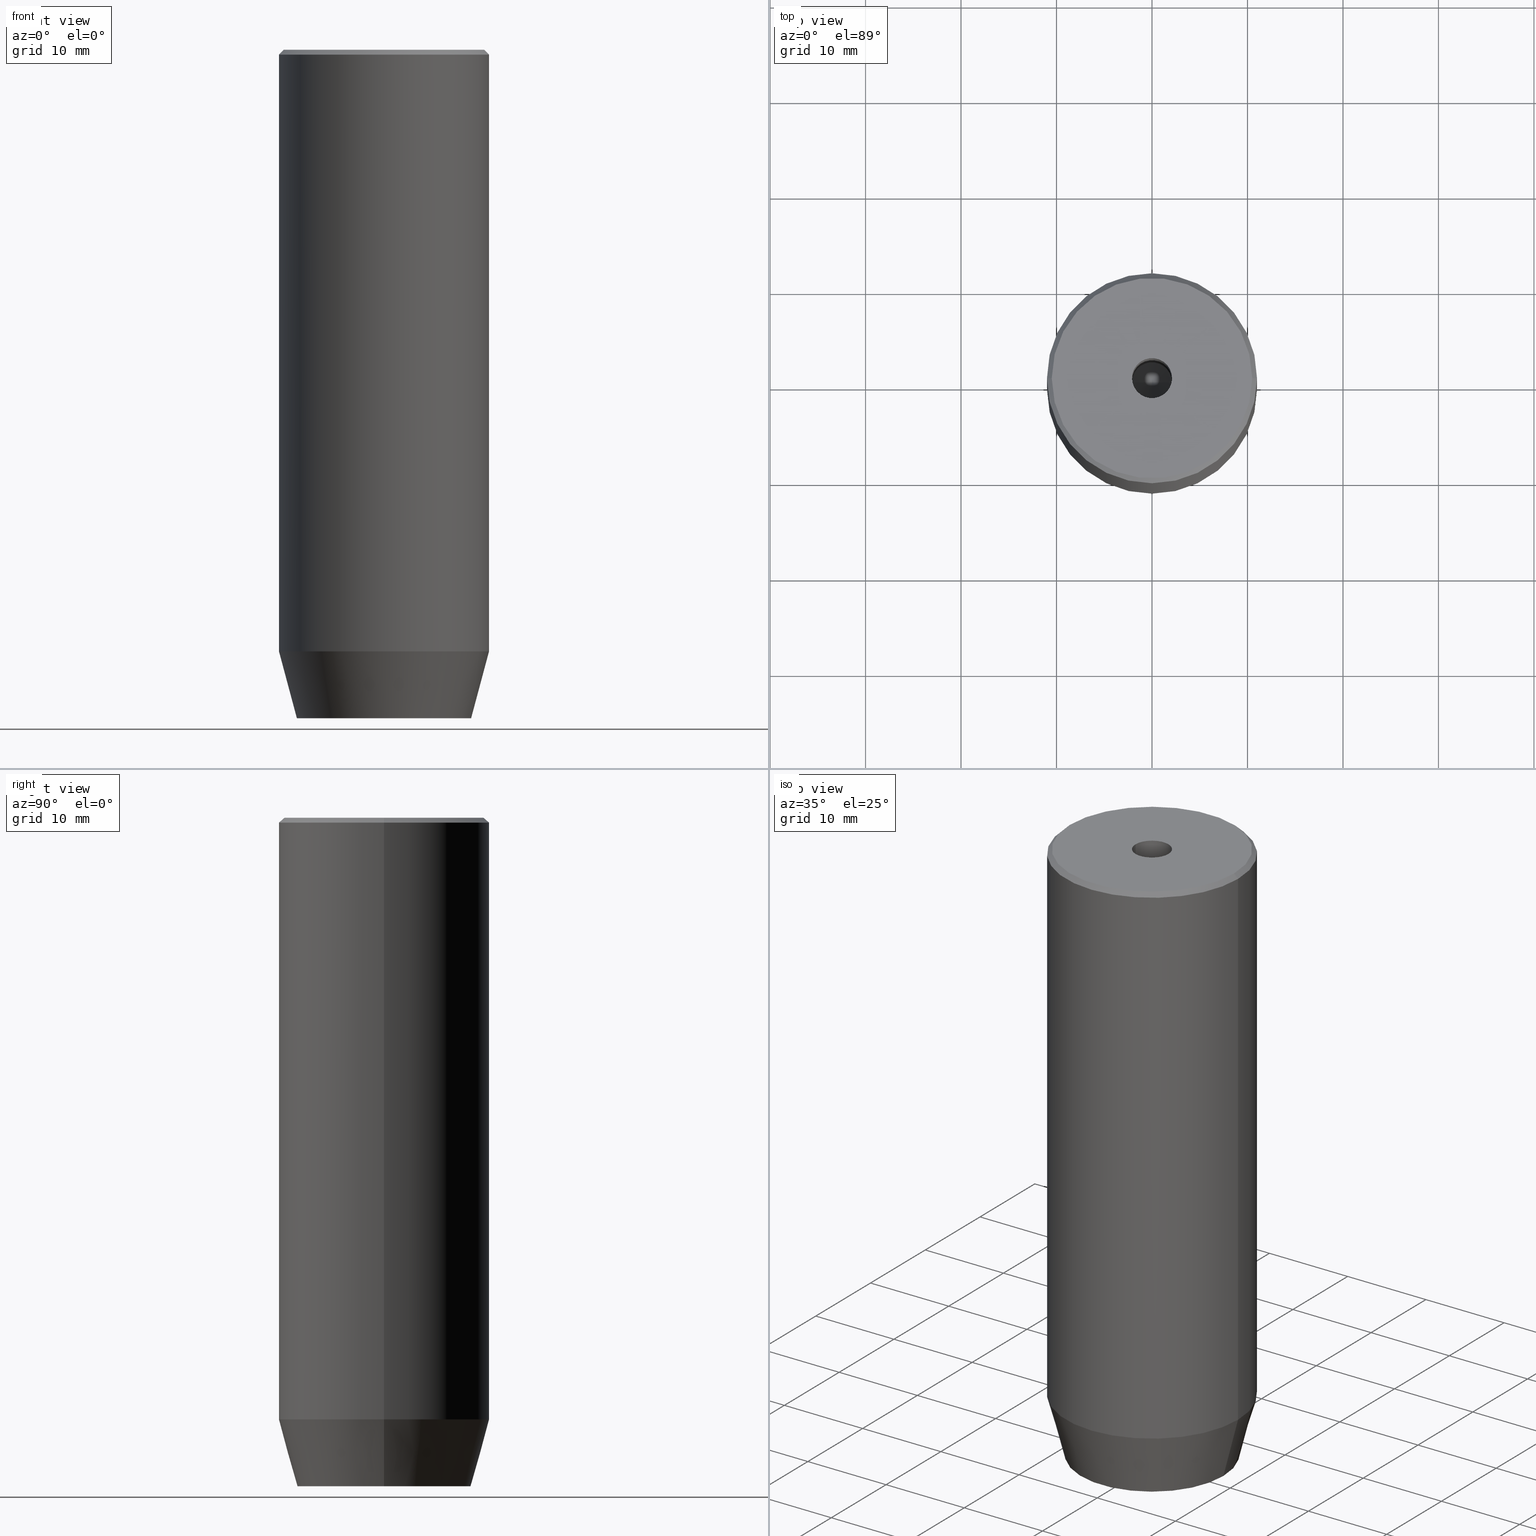
[diagram: canonical four-view strip — front | top / right | iso, engineering-drawing reading convention]
A machine part, canonical four-view strip (front | top / right | iso — engineering-drawing reading convention). The complete STEP part file that produces these views, byte-faithful:
ISO-10303-21;
HEADER;
FILE_DESCRIPTION (( 'STEP AP203' ),
    '1' );
FILE_NAME ('9c77.STEP',
    '2024-01-02T19:02:39',
    ( '' ),
    ( '' ),
    'SwSTEP 2.0',
    'SolidWorks 2019',
    '' );
FILE_SCHEMA (( 'CONFIG_CONTROL_DESIGN' ));
ENDSEC;

DATA;
#1 = DIRECTION ( 'NONE',  ( 1.000000000000000000, 0.000000000000000000, 0.000000000000000000 ) ) ;
#2 = EDGE_LOOP ( 'NONE', ( #317, #234, #158, #478, #150, #527 ) ) ;
#3 = APPROVAL_PERSON_ORGANIZATION ( #22, #94, #433 ) ;
#4 = DIRECTION ( 'NONE',  ( -0.000000000000000000, -0.000000000000000000, -1.000000000000000000 ) ) ;
#5 = APPLICATION_CONTEXT ( 'configuration controlled 3d designs of mechanical parts and assemblies' ) ;
#6 = ADVANCED_FACE ( 'NONE', ( #440 ), #187, .F. ) ;
#7 = LINE ( 'NONE', #193, #198 ) ;
#8 = CARTESIAN_POINT ( 'NONE',  ( 4.336808689942017736E-16, -4.618802153517006737, -67.20000000000000284 ) ) ;
#9 = LINE ( 'NONE', #536, #107 ) ;
#10 = DATE_TIME_ROLE ( 'creation_date' ) ;
#11 = DIRECTION ( 'NONE',  ( -1.000000000000000000, 0.000000000000000000, 0.000000000000000000 ) ) ;
#12 = APPROVAL_PERSON_ORGANIZATION ( #428, #497, #421 ) ;
#13 = CARTESIAN_POINT ( 'NONE',  ( -2.099999999999996980, 2.571758278209438013E-16, 0.000000000000000000 ) ) ;
#14 = ORIENTED_EDGE ( 'NONE', *, *, #151, .F. ) ;
#15 = CARTESIAN_POINT ( 'NONE',  ( 0.000000000000000000, 0.000000000000000000, -25.00000000000000000 ) ) ;
#16 = COORDINATED_UNIVERSAL_TIME_OFFSET ( 1, 0, .AHEAD. ) ;
#17 = CARTESIAN_POINT ( 'NONE',  ( -4.000000000000000000, 0.000000000000000000, -70.00000000000000000 ) ) ;
#18 = VERTEX_POINT ( 'NONE', #210 ) ;
#19 = PRODUCT_DEFINITION ( 'NEZN�M�', '', #220, #295 ) ;
#20 =( LENGTH_UNIT ( ) NAMED_UNIT ( * ) SI_UNIT ( .MILLI., .METRE. ) );
#21 = DIRECTION ( 'NONE',  ( 1.000000000000000000, 0.000000000000000000, 0.000000000000000000 ) ) ;
#22 = PERSON_AND_ORGANIZATION ( #76, #265 ) ;
#23 = ORIENTED_EDGE ( 'NONE', *, *, #142, .F. ) ;
#24 = ADVANCED_FACE ( 'NONE', ( #128 ), #306, .F. ) ;
#25 = ORIENTED_EDGE ( 'NONE', *, *, #526, .T. ) ;
#26 = VECTOR ( 'NONE', #328, 1000.000000000000000 ) ;
#27 = CIRCLE ( 'NONE', #224, 11.00000000000000000 ) ;
#28 = ORIENTED_EDGE ( 'NONE', *, *, #214, .T. ) ;
#29 = APPROVAL_DATE_TIME ( #530, #345 ) ;
#30 = DIRECTION ( 'NONE',  ( -0.000000000000000000, -0.000000000000000000, 1.000000000000000000 ) ) ;
#31 = LOCAL_TIME ( 20, 2, 39.00000000000000000, #122 ) ;
#32 = ORIENTED_EDGE ( 'NONE', *, *, #518, .F. ) ;
#33 = ADVANCED_FACE ( 'NONE', ( #168 ), #103, .T. ) ;
#34 = CC_DESIGN_DATE_AND_TIME_ASSIGNMENT ( #488, #348, ( #40 ) ) ;
#35 = ORIENTED_EDGE ( 'NONE', *, *, #292, .T. ) ;
#36 = LINE ( 'NONE', #359, #374 ) ;
#37 = VECTOR ( 'NONE', #47, 999.9999999999998863 ) ;
#38 = DIRECTION ( 'NONE',  ( 1.000000000000000000, 0.000000000000000000, 0.000000000000000000 ) ) ;
#39 = VECTOR ( 'NONE', #4, 1000.000000000000000 ) ;
#40 = SECURITY_CLASSIFICATION ( '', '', #211 ) ;
#41 = LINE ( 'NONE', #264, #534 ) ;
#42 = ADVANCED_FACE ( 'NONE', ( #408 ), #154, .T. ) ;
#43 = CARTESIAN_POINT ( 'NONE',  ( -2.000000000000000000, 3.464101615137754830, -70.00000000000000000 ) ) ;
#44 = DIRECTION ( 'NONE',  ( 1.000000000000000000, 0.000000000000000000, 0.000000000000000000 ) ) ;
#45 = DIRECTION ( 'NONE',  ( -0.000000000000000000, -0.000000000000000000, 1.000000000000000000 ) ) ;
#46 = AXIS2_PLACEMENT_3D ( 'NONE', #423, #338, #185 ) ;
#47 = DIRECTION ( 'NONE',  ( 0.8660254037844387076, 0.5000000000000001110, 0.000000000000000000 ) ) ;
#48 = DIRECTION ( 'NONE',  ( -0.7071067811865451302, 0.000000000000000000, -0.7071067811865500152 ) ) ;
#49 = LINE ( 'NONE', #413, #39 ) ;
#50 = EDGE_CURVE ( 'NONE', #531, #248, #27, .T. ) ;
#51 = DIRECTION ( 'NONE',  ( 1.000000000000000000, 0.000000000000000000, 0.000000000000000000 ) ) ;
#52 = DIRECTION ( 'NONE',  ( -1.000000000000000000, 0.000000000000000000, 0.000000000000000000 ) ) ;
#53 = EDGE_LOOP ( 'NONE', ( #164, #202, #267, #315 ) ) ;
#54 = DIRECTION ( 'NONE',  ( 0.8660254037844384856, 0.5000000000000002220, 0.000000000000000000 ) ) ;
#55 = ORIENTED_EDGE ( 'NONE', *, *, #246, .F. ) ;
#56 = ORIENTED_EDGE ( 'NONE', *, *, #50, .F. ) ;
#57 = PLANE ( 'NONE',  #337 ) ;
#58 = AXIS2_PLACEMENT_3D ( 'NONE', #398, #171, #580 ) ;
#59 = ORIENTED_EDGE ( 'NONE', *, *, #159, .F. ) ;
#60 = CARTESIAN_POINT ( 'NONE',  ( -2.099999999999995648, 2.571758278209436040E-16, -25.00000000000000000 ) ) ;
#61 = ADVANCED_FACE ( 'NONE', ( #87 ), #270, .T. ) ;
#62 = PERSON_AND_ORGANIZATION ( #76, #265 ) ;
#63 = CARTESIAN_POINT ( 'NONE',  ( 0.000000000000000000, 0.000000000000000000, -25.00000000000000000 ) ) ;
#64 = VERTEX_POINT ( 'NONE', #535 ) ;
#65 = EDGE_LOOP ( 'NONE', ( #55, #502, #420, #256 ) ) ;
#66 = VERTEX_POINT ( 'NONE', #405 ) ;
#67 = ORIENTED_EDGE ( 'NONE', *, *, #334, .F. ) ;
#68 = EDGE_CURVE ( 'NONE', #173, #346, #141, .T. ) ;
#69 = AXIS2_PLACEMENT_3D ( 'NONE', #15, #189, #329 ) ;
#70 = EDGE_LOOP ( 'NONE', ( #507, #100, #203, #184 ) ) ;
#71 = AXIS2_PLACEMENT_3D ( 'NONE', #137, #587, #51 ) ;
#72 = ORIENTED_EDGE ( 'NONE', *, *, #312, .F. ) ;
#73 = VERTEX_POINT ( 'NONE', #181 ) ;
#74 = CONICAL_SURFACE ( 'NONE', #46, 11.00000000000000000, 0.2617993877991500740 ) ;
#75 = ORIENTED_EDGE ( 'NONE', *, *, #259, .F. ) ;
#76 = PERSON ( 'NEUR�EN�', 'NEUR�EN�', 'NEUR�EN�', ('NEUR�EN�'), ('NEUR�EN�'), ('NEUR�EN�') ) ;
#77 = AXIS2_PLACEMENT_3D ( 'NONE', #140, #269, #177 ) ;
#78 = VECTOR ( 'NONE', #92, 1000.000000000000000 ) ;
#79 = ADVANCED_FACE ( 'NONE', ( #82 ), #263, .F. ) ;
#80 = APPROVAL_STATUS ( 'not_yet_approved' ) ;
#81 = ORIENTED_EDGE ( 'NONE', *, *, #542, .F. ) ;
#82 = FACE_OUTER_BOUND ( 'NONE', #382, .T. ) ;
#83 = EDGE_CURVE ( 'NONE', #18, #438, #172, .T. ) ;
#84 = CIRCLE ( 'NONE', #156, 9.124355652982133691 ) ;
#85 = DIRECTION ( 'NONE',  ( 1.000000000000000000, 0.000000000000000000, 0.000000000000000000 ) ) ;
#86 = EDGE_LOOP ( 'NONE', ( #465, #424 ) ) ;
#87 = FACE_OUTER_BOUND ( 'NONE', #458, .T. ) ;
#88 = CARTESIAN_POINT ( 'NONE',  ( 11.00000000000000000, 0.000000000000000000, 0.000000000000000000 ) ) ;
#89 = CARTESIAN_POINT ( 'NONE',  ( 0.000000000000000000, 0.000000000000000000, -63.00000000000000000 ) ) ;
#90 = FACE_BOUND ( 'NONE', #477, .T. ) ;
#91 = ORIENTED_EDGE ( 'NONE', *, *, #259, .T. ) ;
#92 = DIRECTION ( 'NONE',  ( 0.000000000000000000, -1.000000000000000000, 0.000000000000000000 ) ) ;
#93 = CARTESIAN_POINT ( 'NONE',  ( 0.000000000000000000, 0.000000000000000000, 0.000000000000000000 ) ) ;
#94 = APPROVAL ( #80, 'NEUR�EN�' ) ;
#95 = CC_DESIGN_PERSON_AND_ORGANIZATION_ASSIGNMENT ( #344, #575, ( #220 ) ) ;
#96 = LINE ( 'NONE', #289, #26 ) ;
#97 = FACE_OUTER_BOUND ( 'NONE', #326, .T. ) ;
#98 = ORIENTED_EDGE ( 'NONE', *, *, #483, .T. ) ;
#99 = FACE_OUTER_BOUND ( 'NONE', #322, .T. ) ;
#100 = ORIENTED_EDGE ( 'NONE', *, *, #341, .T. ) ;
#101 = LINE ( 'NONE', #476, #437 ) ;
#102 = ORIENTED_EDGE ( 'NONE', *, *, #246, .T. ) ;
#103 = CONICAL_SURFACE ( 'NONE', #331, 10.49999999999998224, 0.7853981633974447263 ) ;
#104 = COORDINATED_UNIVERSAL_TIME_OFFSET ( 1, 0, .AHEAD. ) ;
#105 = EDGE_CURVE ( 'NONE', #212, #205, #96, .T. ) ;
#106 = LINE ( 'NONE', #13, #454 ) ;
#107 = VECTOR ( 'NONE', #233, 1000.000000000000114 ) ;
#108 =( NAMED_UNIT ( * ) SI_UNIT ( $, .STERADIAN. ) SOLID_ANGLE_UNIT ( ) );
#109 = CC_DESIGN_APPROVAL ( #94, ( #40 ) ) ;
#110 = DIRECTION ( 'NONE',  ( 0.000000000000000000, 1.000000000000000000, 0.000000000000000000 ) ) ;
#111 = DIRECTION ( 'NONE',  ( 0.000000000000000000, -1.000000000000000000, 0.000000000000000000 ) ) ;
#112 = PERSON_AND_ORGANIZATION ( #76, #265 ) ;
#113 = DIRECTION ( 'NONE',  ( -0.8571673007021108903, 1.049727191138616847E-16, 0.5150380749100565980 ) ) ;
#114 = ORIENTED_EDGE ( 'NONE', *, *, #506, .T. ) ;
#115 = CARTESIAN_POINT ( 'NONE',  ( 4.000000000000000000, 0.000000000000000000, -67.20000000000000284 ) ) ;
#116 = EDGE_CURVE ( 'NONE', #73, #545, #101, .T. ) ;
#117 = COORDINATED_UNIVERSAL_TIME_OFFSET ( 1, 0, .AHEAD. ) ;
#118 = CLOSED_SHELL ( 'NONE', ( #446, #393, #33, #42, #61, #279, #563, #236, #133, #268, #586, #302, #79, #349, #254, #466, #201, #6, #24 ) ) ;
#119 = ORIENTED_EDGE ( 'NONE', *, *, #116, .T. ) ;
#120 = ORIENTED_EDGE ( 'NONE', *, *, #68, .F. ) ;
#121 = CARTESIAN_POINT ( 'NONE',  ( 0.000000000000000000, 4.618802153517006737, -67.20000000000000284 ) ) ;
#122 = COORDINATED_UNIVERSAL_TIME_OFFSET ( 1, 0, .AHEAD. ) ;
#123 = VECTOR ( 'NONE', #378, 1000.000000000000000 ) ;
#124 = LOCAL_TIME ( 20, 2, 39.00000000000000000, #301 ) ;
#125 = CARTESIAN_POINT ( 'NONE',  ( -4.000000000000000000, 2.309401076758503368, -67.20000000000000284 ) ) ;
#126 = ORIENTED_EDGE ( 'NONE', *, *, #190, .T. ) ;
#127 = CC_DESIGN_PERSON_AND_ORGANIZATION_ASSIGNMENT ( #62, #285, ( #431 ) ) ;
#128 = FACE_OUTER_BOUND ( 'NONE', #136, .T. ) ;
#129 = LINE ( 'NONE', #392, #216 ) ;
#130 = CARTESIAN_POINT ( 'NONE',  ( 0.000000000000000000, 0.000000000000000000, -25.00000000000000000 ) ) ;
#131 = DIRECTION ( 'NONE',  ( -0.000000000000000000, -0.000000000000000000, 1.000000000000000000 ) ) ;
#132 = FACE_OUTER_BOUND ( 'NONE', #2, .T. ) ;
#133 = ADVANCED_FACE ( 'NONE', ( #283 ), #74, .T. ) ;
#134 = DIRECTION ( 'NONE',  ( -0.000000000000000000, -0.000000000000000000, 1.000000000000000000 ) ) ;
#135 = CARTESIAN_POINT ( 'NONE',  ( 0.000000000000000000, 0.000000000000000000, 0.000000000000000000 ) ) ;
#136 = EDGE_LOOP ( 'NONE', ( #23, #547, #119, #25 ) ) ;
#137 = CARTESIAN_POINT ( 'NONE',  ( 0.000000000000000000, 0.000000000000000000, -1.990051048614449116E-16 ) ) ;
#138 = CARTESIAN_POINT ( 'NONE',  ( 4.000000000000000000, -2.309401076758502480, -67.20000000000000284 ) ) ;
#139 = VECTOR ( 'NONE', #501, 1000.000000000000000 ) ;
#140 = CARTESIAN_POINT ( 'NONE',  ( 0.000000000000000000, 0.000000000000000000, -0.5000000000000213163 ) ) ;
#141 = LINE ( 'NONE', #538, #499 ) ;
#142 = EDGE_CURVE ( 'NONE', #438, #255, #106, .T. ) ;
#143 = CARTESIAN_POINT ( 'NONE',  ( -4.000000000000000000, 0.000000000000000000, -67.20000000000000284 ) ) ;
#144 = VERTEX_POINT ( 'NONE', #515 ) ;
#145 = DIRECTION ( 'NONE',  ( 1.000000000000000000, 0.000000000000000000, 0.000000000000000000 ) ) ;
#146 = FACE_BOUND ( 'NONE', #299, .T. ) ;
#147 = DIRECTION ( 'NONE',  ( 0.000000000000000000, 0.000000000000000000, 1.000000000000000000 ) ) ;
#148 = ORIENTED_EDGE ( 'NONE', *, *, #180, .F. ) ;
#149 = DIRECTION ( 'NONE',  ( -0.000000000000000000, -0.000000000000000000, -1.000000000000000000 ) ) ;
#150 = ORIENTED_EDGE ( 'NONE', *, *, #489, .T. ) ;
#151 = EDGE_CURVE ( 'NONE', #304, #64, #7, .T. ) ;
#152 = CARTESIAN_POINT ( 'NONE',  ( -2.099999999999995648, 2.571758278209436040E-16, -25.00000000000000000 ) ) ;
#153 = VERTEX_POINT ( 'NONE', #370 ) ;
#154 = CONICAL_SURFACE ( 'NONE', #305, 11.00000000000000000, 0.2617993877991500740 ) ;
#155 = FACE_OUTER_BOUND ( 'NONE', #452, .T. ) ;
#156 = AXIS2_PLACEMENT_3D ( 'NONE', #574, #449, #38 ) ;
#157 = LINE ( 'NONE', #558, #178 ) ;
#158 = ORIENTED_EDGE ( 'NONE', *, *, #429, .T. ) ;
#159 = EDGE_CURVE ( 'NONE', #205, #469, #555, .T. ) ;
#160 = APPROVAL_STATUS ( 'not_yet_approved' ) ;
#161 = LINE ( 'NONE', #121, #217 ) ;
#162 = SHAPE_DEFINITION_REPRESENTATION ( #287, #327 ) ;
#163 = EDGE_LOOP ( 'NONE', ( #377, #388, #482, #444 ) ) ;
#164 = ORIENTED_EDGE ( 'NONE', *, *, #190, .F. ) ;
#165 = EDGE_CURVE ( 'NONE', #255, #545, #167, .T. ) ;
#166 = DIRECTION ( 'NONE',  ( -0.8660254037844384856, 0.5000000000000002220, 0.000000000000000000 ) ) ;
#167 = CIRCLE ( 'NONE', #577, 2.099999999999998757 ) ;
#168 = FACE_OUTER_BOUND ( 'NONE', #387, .T. ) ;
#169 = DIRECTION ( 'NONE',  ( -0.000000000000000000, -0.000000000000000000, 1.000000000000000000 ) ) ;
#170 = EDGE_CURVE ( 'NONE', #73, #438, #318, .T. ) ;
#171 = DIRECTION ( 'NONE',  ( 0.000000000000000000, 0.000000000000000000, -1.000000000000000000 ) ) ;
#172 = LINE ( 'NONE', #152, #569 ) ;
#173 = VERTEX_POINT ( 'NONE', #495 ) ;
#174 = DIRECTION ( 'NONE',  ( 0.5000000000000001110, 0.8660254037844385966, -0.000000000000000000 ) ) ;
#175 = DIRECTION ( 'NONE',  ( -0.000000000000000000, 0.000000000000000000, -1.000000000000000000 ) ) ;
#176 = CONICAL_SURFACE ( 'NONE', #486, 10.49999999999998224, 0.7853981633974447263 ) ;
#177 = DIRECTION ( 'NONE',  ( 1.000000000000000000, 0.000000000000000000, 0.000000000000000000 ) ) ;
#178 = VECTOR ( 'NONE', #149, 1000.000000000000000 ) ;
#179 = DIRECTION ( 'NONE',  ( -0.000000000000000000, -0.000000000000000000, 1.000000000000000000 ) ) ;
#180 = EDGE_CURVE ( 'NONE', #244, #173, #475, .T. ) ;
#181 = CARTESIAN_POINT ( 'NONE',  ( 2.099999999999995648, 0.000000000000000000, -25.00000000000000000 ) ) ;
#182 = CARTESIAN_POINT ( 'NONE',  ( 4.336808689942017736E-16, -4.618802153517006737, -67.20000000000000284 ) ) ;
#183 = FACE_OUTER_BOUND ( 'NONE', #65, .T. ) ;
#184 = ORIENTED_EDGE ( 'NONE', *, *, #321, .T. ) ;
#185 = DIRECTION ( 'NONE',  ( 1.000000000000000000, 0.000000000000000000, 0.000000000000000000 ) ) ;
#186 = CARTESIAN_POINT ( 'NONE',  ( 0.000000000000000000, 0.000000000000000000, -70.00000000000000000 ) ) ;
#187 = CONICAL_SURFACE ( 'NONE', #309, 2.099999999999995648, 1.029744258676651647 ) ;
#188 = CARTESIAN_POINT ( 'NONE',  ( 0.000000000000000000, 0.000000000000000000, 0.000000000000000000 ) ) ;
#189 = DIRECTION ( 'NONE',  ( -0.000000000000000000, -0.000000000000000000, 1.000000000000000000 ) ) ;
#190 = EDGE_CURVE ( 'NONE', #484, #248, #258, .T. ) ;
#191 = PLANE ( 'NONE',  #513 ) ;
#192 = ORIENTED_EDGE ( 'NONE', *, *, #426, .F. ) ;
#193 = CARTESIAN_POINT ( 'NONE',  ( 2.000000000000000444, 3.464101615137754386, -70.00000000000000000 ) ) ;
#194 = CALENDAR_DATE ( 2024, 2, 1 ) ;
#195 = ORIENTED_EDGE ( 'NONE', *, *, #415, .F. ) ;
#196 = DIRECTION ( 'NONE',  ( -0.000000000000000000, -0.000000000000000000, 1.000000000000000000 ) ) ;
#197 = VERTEX_POINT ( 'NONE', #125 ) ;
#198 = VECTOR ( 'NONE', #376, 1000.000000000000000 ) ;
#199 = CALENDAR_DATE ( 2024, 2, 1 ) ;
#200 = EDGE_LOOP ( 'NONE', ( #28, #126, #56, #537 ) ) ;
#201 = ADVANCED_FACE ( 'NONE', ( #132 ), #207, .T. ) ;
#202 = ORIENTED_EDGE ( 'NONE', *, *, #307, .T. ) ;
#203 = ORIENTED_EDGE ( 'NONE', *, *, #334, .T. ) ;
#204 = CALENDAR_DATE ( 2024, 2, 1 ) ;
#205 = VERTEX_POINT ( 'NONE', #389 ) ;
#206 = EDGE_CURVE ( 'NONE', #197, #407, #129, .T. ) ;
#207 = PLANE ( 'NONE',  #58 ) ;
#208 = AXIS2_PLACEMENT_3D ( 'NONE', #366, #585, #505 ) ;
#209 = VECTOR ( 'NONE', #549, 1000.000000000000000 ) ;
#210 = CARTESIAN_POINT ( 'NONE',  ( -6.432287649943602629E-15, 0.000000000000000000, -26.26180729995787999 ) ) ;
#211 = SECURITY_CLASSIFICATION_LEVEL ( 'unclassified' ) ;
#212 = VERTEX_POINT ( 'NONE', #221 ) ;
#213 = FACE_OUTER_BOUND ( 'NONE', #70, .T. ) ;
#214 = EDGE_CURVE ( 'NONE', #66, #484, #84, .T. ) ;
#215 = ORIENTED_EDGE ( 'NONE', *, *, #483, .F. ) ;
#216 = VECTOR ( 'NONE', #353, 999.9999999999998863 ) ;
#217 = VECTOR ( 'NONE', #300, 1000.000000000000000 ) ;
#218 = CARTESIAN_POINT ( 'NONE',  ( -2.000000000000000888, -3.464101615137754386, -67.20000000000000284 ) ) ;
#219 = CARTESIAN_POINT ( 'NONE',  ( 11.00000000000000000, 0.000000000000000000, -63.00000000000000000 ) ) ;
#220 = PRODUCT_DEFINITION_FORMATION_WITH_SPECIFIED_SOURCE ( 'LIBOVOLN�', '', #431, .NOT_KNOWN. ) ;
#221 = CARTESIAN_POINT ( 'NONE',  ( -4.000000000000000000, -2.309401076758503368, -67.20000000000000284 ) ) ;
#222 = LINE ( 'NONE', #450, #443 ) ;
#223 = LINE ( 'NONE', #43, #37 ) ;
#224 = AXIS2_PLACEMENT_3D ( 'NONE', #89, #131, #417 ) ;
#225 = PLANE ( 'NONE',  #227 ) ;
#226 = EDGE_CURVE ( 'NONE', #153, #205, #490, .T. ) ;
#227 = AXIS2_PLACEMENT_3D ( 'NONE', #368, #237, #550 ) ;
#228 = CARTESIAN_POINT ( 'NONE',  ( 4.000000000000000000, -2.309401076758502480, -67.20000000000000284 ) ) ;
#229 = VECTOR ( 'NONE', #451, 1000.000000000000000 ) ;
#230 = DIRECTION ( 'NONE',  ( 0.8660254037844385966, -0.5000000000000001110, 0.000000000000000000 ) ) ;
#231 = ORIENTED_EDGE ( 'NONE', *, *, #226, .T. ) ;
#232 = LINE ( 'NONE', #455, #553 ) ;
#233 = DIRECTION ( 'NONE',  ( 0.7071067811865451302, 8.659560562354904508E-17, -0.7071067811865500152 ) ) ;
#234 = ORIENTED_EDGE ( 'NONE', *, *, #312, .T. ) ;
#235 = CARTESIAN_POINT ( 'NONE',  ( 0.000000000000000000, 0.000000000000000000, 0.000000000000000000 ) ) ;
#236 = ADVANCED_FACE ( 'NONE', ( #213 ), #396, .T. ) ;
#237 = DIRECTION ( 'NONE',  ( 0.000000000000000000, 0.000000000000000000, -1.000000000000000000 ) ) ;
#238 = DIRECTION ( 'NONE',  ( -0.8660254037844385966, -0.4999999999999999445, 0.000000000000000000 ) ) ;
#239 =( NAMED_UNIT ( * ) PLANE_ANGLE_UNIT ( ) SI_UNIT ( $, .RADIAN. ) );
#240 = ORIENTED_EDGE ( 'NONE', *, *, #142, .T. ) ;
#241 = LINE ( 'NONE', #479, #123 ) ;
#242 = APPLICATION_PROTOCOL_DEFINITION ( 'international standard', 'config_control_design', 1994, #383 ) ;
#243 = DIRECTION ( 'NONE',  ( -0.000000000000000000, -0.000000000000000000, 1.000000000000000000 ) ) ;
#244 = VERTEX_POINT ( 'NONE', #533 ) ;
#245 = FACE_OUTER_BOUND ( 'NONE', #347, .T. ) ;
#246 = EDGE_CURVE ( 'NONE', #244, #144, #9, .T. ) ;
#247 = DIRECTION ( 'NONE',  ( -0.000000000000000000, -0.000000000000000000, 1.000000000000000000 ) ) ;
#248 = VERTEX_POINT ( 'NONE', #314 ) ;
#249 = CIRCLE ( 'NONE', #208, 11.00000000000000000 ) ;
#250 = CALENDAR_DATE ( 2024, 2, 1 ) ;
#251 = VECTOR ( 'NONE', #418, 1000.000000000000000 ) ;
#252 = ORIENTED_EDGE ( 'NONE', *, *, #551, .F. ) ;
#253 = FACE_OUTER_BOUND ( 'NONE', #414, .T. ) ;
#254 = ADVANCED_FACE ( 'NONE', ( #462 ), #371, .F. ) ;
#255 = VERTEX_POINT ( 'NONE', #311 ) ;
#256 = ORIENTED_EDGE ( 'NONE', *, *, #321, .F. ) ;
#257 = CC_DESIGN_APPROVAL ( #345, ( #220 ) ) ;
#258 = LINE ( 'NONE', #261, #343 ) ;
#259 = EDGE_CURVE ( 'NONE', #469, #304, #223, .T. ) ;
#260 = ORIENTED_EDGE ( 'NONE', *, *, #518, .T. ) ;
#261 = CARTESIAN_POINT ( 'NONE',  ( -11.00000000000000000, 1.347111479062088405E-15, -63.00000000000000000 ) ) ;
#262 = PRODUCT_RELATED_PRODUCT_CATEGORY ( 'detail', '', ( #431 ) ) ;
#263 = PLANE ( 'NONE',  #355 ) ;
#264 = CARTESIAN_POINT ( 'NONE',  ( -2.000000000000000888, -3.464101615137754386, -67.20000000000000284 ) ) ;
#265 = ORGANIZATION ( 'NEUR�EN�', 'NEUR�EN�', '' ) ;
#266 = LINE ( 'NONE', #456, #229 ) ;
#267 = ORIENTED_EDGE ( 'NONE', *, *, #441, .T. ) ;
#268 = ADVANCED_FACE ( 'NONE', ( #183 ), #176, .T. ) ;
#269 = DIRECTION ( 'NONE',  ( 0.000000000000000000, 0.000000000000000000, -1.000000000000000000 ) ) ;
#270 = CYLINDRICAL_SURFACE ( 'NONE', #282, 11.00000000000000000 ) ;
#271 = DIRECTION ( 'NONE',  ( -0.8660254037844384856, -0.5000000000000002220, 0.000000000000000000 ) ) ;
#272 = DIRECTION ( 'NONE',  ( -0.000000000000000000, -0.000000000000000000, 1.000000000000000000 ) ) ;
#273 = ORIENTED_EDGE ( 'NONE', *, *, #532, .F. ) ;
#274 = ORIENTED_EDGE ( 'NONE', *, *, #50, .T. ) ;
#275 = DIRECTION ( 'NONE',  ( -0.000000000000000000, -0.000000000000000000, 1.000000000000000000 ) ) ;
#276 = CIRCLE ( 'NONE', #564, 10.49999999999998224 ) ;
#277 = DIRECTION ( 'NONE',  ( 0.000000000000000000, 0.000000000000000000, -1.000000000000000000 ) ) ;
#278 = AXIS2_PLACEMENT_3D ( 'NONE', #427, #510, #145 ) ;
#279 = ADVANCED_FACE ( 'NONE', ( #90, #419 ), #225, .T. ) ;
#280 = DIRECTION ( 'NONE',  ( 0.5000000000000003331, -0.8660254037844385966, 0.000000000000000000 ) ) ;
#281 = DIRECTION ( 'NONE',  ( 1.000000000000000000, 0.000000000000000000, 0.000000000000000000 ) ) ;
#282 = AXIS2_PLACEMENT_3D ( 'NONE', #491, #45, #352 ) ;
#283 = FACE_OUTER_BOUND ( 'NONE', #53, .T. ) ;
#284 = CARTESIAN_POINT ( 'NONE',  ( 2.000000000000000888, -3.464101615137754386, -67.20000000000000284 ) ) ;
#285 = PERSON_AND_ORGANIZATION_ROLE ( 'design_owner' ) ;
#286 = CARTESIAN_POINT ( 'NONE',  ( 0.000000000000000000, 0.000000000000000000, -1.990051048614449116E-16 ) ) ;
#287 = PRODUCT_DEFINITION_SHAPE ( 'NONE', 'NONE',  #19 ) ;
#288 = LOCAL_TIME ( 20, 2, 39.00000000000000000, #16 ) ;
#289 = CARTESIAN_POINT ( 'NONE',  ( -4.000000000000000000, -2.309401076758503368, -67.20000000000000284 ) ) ;
#290 = ORIENTED_EDGE ( 'NONE', *, *, #526, .F. ) ;
#291 = CYLINDRICAL_SURFACE ( 'NONE', #543, 2.099999999999996980 ) ;
#292 = EDGE_CURVE ( 'NONE', #438, #73, #562, .T. ) ;
#293 = ORIENTED_EDGE ( 'NONE', *, *, #292, .F. ) ;
#294 = DATE_AND_TIME ( #194, #288 ) ;
#295 = DESIGN_CONTEXT ( 'detailed design', #5, 'design' ) ;
#296 = ORIENTED_EDGE ( 'NONE', *, *, #415, .T. ) ;
#297 = PERSON_AND_ORGANIZATION_ROLE ( 'classification_officer' ) ;
#298 = EDGE_LOOP ( 'NONE', ( #98, #81, #565, #367 ) ) ;
#299 = EDGE_LOOP ( 'NONE', ( #290, #434 ) ) ;
#300 = DIRECTION ( 'NONE',  ( -0.000000000000000000, -0.000000000000000000, -1.000000000000000000 ) ) ;
#301 = COORDINATED_UNIVERSAL_TIME_OFFSET ( 1, 0, .AHEAD. ) ;
#302 = ADVANCED_FACE ( 'NONE', ( #406 ), #494, .F. ) ;
#303 = APPROVAL_PERSON_ORGANIZATION ( #442, #345, #570 ) ;
#304 = VERTEX_POINT ( 'NONE', #410 ) ;
#305 = AXIS2_PLACEMENT_3D ( 'NONE', #308, #134, #496 ) ;
#306 = CYLINDRICAL_SURFACE ( 'NONE', #358, 2.099999999999996980 ) ;
#307 = EDGE_CURVE ( 'NONE', #484, #66, #430, .T. ) ;
#308 = CARTESIAN_POINT ( 'NONE',  ( 0.000000000000000000, 0.000000000000000000, -63.00000000000000000 ) ) ;
#309 = AXIS2_PLACEMENT_3D ( 'NONE', #130, #30, #529 ) ;
#310 = CARTESIAN_POINT ( 'NONE',  ( -9.124355652982133691, 1.232261386766375507E-15, -70.00000000000000000 ) ) ;
#311 = CARTESIAN_POINT ( 'NONE',  ( -2.099999999999998757, 2.571758278209440478E-16, -1.990051048614449116E-16 ) ) ;
#312 = EDGE_CURVE ( 'NONE', #407, #335, #360, .T. ) ;
#313 = CARTESIAN_POINT ( 'NONE',  ( 2.099999999999998757, 0.000000000000000000, -1.990051048614449116E-16 ) ) ;
#314 = CARTESIAN_POINT ( 'NONE',  ( -11.00000000000000000, 1.347111479062088405E-15, -63.00000000000000000 ) ) ;
#315 = ORIENTED_EDGE ( 'NONE', *, *, #341, .F. ) ;
#316 = PLANE ( 'NONE',  #487 ) ;
#317 = ORIENTED_EDGE ( 'NONE', *, *, #206, .T. ) ;
#318 = CIRCLE ( 'NONE', #395, 2.099999999999995648 ) ;
#319 = DIRECTION ( 'NONE',  ( -0.8660254037844385966, 0.5000000000000001110, 0.000000000000000000 ) ) ;
#320 = DIRECTION ( 'NONE',  ( -0.000000000000000000, -0.000000000000000000, 1.000000000000000000 ) ) ;
#321 = EDGE_CURVE ( 'NONE', #144, #346, #503, .T. ) ;
#322 = EDGE_LOOP ( 'NONE', ( #339, #500 ) ) ;
#323 = DIRECTION ( 'NONE',  ( 1.000000000000000000, 0.000000000000000000, 0.000000000000000000 ) ) ;
#324 = CONICAL_SURFACE ( 'NONE', #69, 2.099999999999995648, 1.029744258676651647 ) ;
#325 = LINE ( 'NONE', #88, #139 ) ;
#326 = EDGE_LOOP ( 'NONE', ( #260, #252, #560, #579 ) ) ;
#327 = ADVANCED_BREP_SHAPE_REPRESENTATION ( '9c77', ( #512, #582 ), #504 ) ;
#328 = DIRECTION ( 'NONE',  ( -0.000000000000000000, -0.000000000000000000, -1.000000000000000000 ) ) ;
#329 = DIRECTION ( 'NONE',  ( 1.000000000000000000, 0.000000000000000000, 0.000000000000000000 ) ) ;
#330 = ORIENTED_EDGE ( 'NONE', *, *, #105, .F. ) ;
#331 = AXIS2_PLACEMENT_3D ( 'NONE', #447, #363, #460 ) ;
#332 = PLANE ( 'NONE',  #278 ) ;
#333 = EDGE_LOOP ( 'NONE', ( #411, #571, #524 ) ) ;
#334 = EDGE_CURVE ( 'NONE', #531, #144, #325, .T. ) ;
#335 = VERTEX_POINT ( 'NONE', #540 ) ;
#336 = AXIS2_PLACEMENT_3D ( 'NONE', #186, #320, #1 ) ;
#337 = AXIS2_PLACEMENT_3D ( 'NONE', #409, #174, #319 ) ;
#338 = DIRECTION ( 'NONE',  ( -0.000000000000000000, -0.000000000000000000, 1.000000000000000000 ) ) ;
#339 = ORIENTED_EDGE ( 'NONE', *, *, #356, .T. ) ;
#340 = PERSON_AND_ORGANIZATION_ROLE ( 'design_supplier' ) ;
#341 = EDGE_CURVE ( 'NONE', #248, #531, #249, .T. ) ;
#342 = ORIENTED_EDGE ( 'NONE', *, *, #572, .T. ) ;
#343 = VECTOR ( 'NONE', #439, 1000.000000000000000 ) ;
#344 = PERSON_AND_ORGANIZATION ( #76, #265 ) ;
#345 = APPROVAL ( #160, 'NEUR�EN�' ) ;
#346 = VERTEX_POINT ( 'NONE', #544 ) ;
#347 = EDGE_LOOP ( 'NONE', ( #435, #473, #72, #556 ) ) ;
#348 = DATE_TIME_ROLE ( 'classification_date' ) ;
#349 = ADVANCED_FACE ( 'NONE', ( #97 ), #316, .F. ) ;
#350 = ORIENTED_EDGE ( 'NONE', *, *, #116, .F. ) ;
#351 = AXIS2_PLACEMENT_3D ( 'NONE', #143, #11, #147 ) ;
#352 = DIRECTION ( 'NONE',  ( 1.000000000000000000, 0.000000000000000000, 0.000000000000000000 ) ) ;
#353 = DIRECTION ( 'NONE',  ( 0.8660254037844387076, 0.5000000000000001110, 0.000000000000000000 ) ) ;
#354 = DIRECTION ( 'NONE',  ( -0.000000000000000000, -0.000000000000000000, 1.000000000000000000 ) ) ;
#355 = AXIS2_PLACEMENT_3D ( 'NONE', #218, #401, #583 ) ;
#356 = EDGE_CURVE ( 'NONE', #173, #244, #276, .T. ) ;
#357 = ORIENTED_EDGE ( 'NONE', *, *, #226, .F. ) ;
#358 = AXIS2_PLACEMENT_3D ( 'NONE', #485, #394, #578 ) ;
#359 = CARTESIAN_POINT ( 'NONE',  ( 2.000000000000000888, -3.464101615137754386, -70.00000000000000000 ) ) ;
#360 = LINE ( 'NONE', #422, #391 ) ;
#361 = ORIENTED_EDGE ( 'NONE', *, *, #206, .F. ) ;
#362 = AXIS2_PLACEMENT_3D ( 'NONE', #404, #169, #584 ) ;
#363 = DIRECTION ( 'NONE',  ( 0.000000000000000000, 0.000000000000000000, -1.000000000000000000 ) ) ;
#364 = DIRECTION ( 'NONE',  ( 0.8571673007021108903, 0.000000000000000000, 0.5150380749100565980 ) ) ;
#365 = LOCAL_TIME ( 20, 2, 39.00000000000000000, #117 ) ;
#366 = CARTESIAN_POINT ( 'NONE',  ( 0.000000000000000000, 0.000000000000000000, -63.00000000000000000 ) ) ;
#367 = ORIENTED_EDGE ( 'NONE', *, *, #386, .T. ) ;
#368 = CARTESIAN_POINT ( 'NONE',  ( 0.000000000000000000, 9.124355652982133691, -70.00000000000000000 ) ) ;
#369 = VERTEX_POINT ( 'NONE', #138 ) ;
#370 = CARTESIAN_POINT ( 'NONE',  ( 4.336808689942017736E-16, -4.618802153517006737, -70.00000000000000000 ) ) ;
#371 = PLANE ( 'NONE',  #552 ) ;
#372 = VECTOR ( 'NONE', #111, 1000.000000000000000 ) ;
#373 = DIRECTION ( 'NONE',  ( -0.000000000000000000, -0.000000000000000000, 1.000000000000000000 ) ) ;
#374 = VECTOR ( 'NONE', #271, 1000.000000000000114 ) ;
#375 = ORIENTED_EDGE ( 'NONE', *, *, #489, .F. ) ;
#376 = DIRECTION ( 'NONE',  ( 0.8660254037844385966, -0.5000000000000001110, 0.000000000000000000 ) ) ;
#377 = ORIENTED_EDGE ( 'NONE', *, *, #159, .T. ) ;
#378 = DIRECTION ( 'NONE',  ( 0.2588190451025213501, 0.000000000000000000, 0.9659258262890680902 ) ) ;
#379 = EDGE_CURVE ( 'NONE', #212, #197, #266, .T. ) ;
#380 = CARTESIAN_POINT ( 'NONE',  ( 0.000000000000000000, 0.000000000000000000, -0.5000000000000213163 ) ) ;
#381 = DATE_AND_TIME ( #199, #511 ) ;
#382 = EDGE_LOOP ( 'NONE', ( #231, #330, #375, #541 ) ) ;
#383 = APPLICATION_CONTEXT ( 'configuration controlled 3d designs of mechanical parts and assemblies' ) ;
#384 = AXIS2_PLACEMENT_3D ( 'NONE', #235, #179, #281 ) ;
#385 = CC_DESIGN_SECURITY_CLASSIFICATION ( #40, ( #220 ) ) ;
#386 = EDGE_CURVE ( 'NONE', #335, #64, #49, .T. ) ;
#387 = EDGE_LOOP ( 'NONE', ( #148, #102, #195, #120 ) ) ;
#388 = ORIENTED_EDGE ( 'NONE', *, *, #572, .F. ) ;
#389 = CARTESIAN_POINT ( 'NONE',  ( -4.000000000000000000, -2.309401076758503368, -70.00000000000000000 ) ) ;
#390 = VECTOR ( 'NONE', #166, 1000.000000000000114 ) ;
#391 = VECTOR ( 'NONE', #230, 1000.000000000000000 ) ;
#392 = CARTESIAN_POINT ( 'NONE',  ( -2.000000000000000000, 3.464101615137754830, -67.20000000000000284 ) ) ;
#393 = ADVANCED_FACE ( 'NONE', ( #566 ), #324, .F. ) ;
#394 = DIRECTION ( 'NONE',  ( -0.000000000000000000, -0.000000000000000000, 1.000000000000000000 ) ) ;
#395 = AXIS2_PLACEMENT_3D ( 'NONE', #63, #243, #44 ) ;
#396 = CYLINDRICAL_SURFACE ( 'NONE', #362, 11.00000000000000000 ) ;
#397 = EDGE_LOOP ( 'NONE', ( #273, #521, #35 ) ) ;
#398 = CARTESIAN_POINT ( 'NONE',  ( 0.000000000000000000, 0.000000000000000000, -67.20000000000000284 ) ) ;
#399 = AXIS2_PLACEMENT_3D ( 'NONE', #380, #425, #21 ) ;
#400 = CIRCLE ( 'NONE', #71, 2.099999999999998757 ) ;
#401 = DIRECTION ( 'NONE',  ( -0.5000000000000003331, -0.8660254037844385966, 0.000000000000000000 ) ) ;
#402 = LINE ( 'NONE', #228, #251 ) ;
#403 = EDGE_CURVE ( 'NONE', #369, #516, #517, .T. ) ;
#404 = CARTESIAN_POINT ( 'NONE',  ( 0.000000000000000000, 0.000000000000000000, 0.000000000000000000 ) ) ;
#405 = CARTESIAN_POINT ( 'NONE',  ( 9.124355652982133691, 0.000000000000000000, -70.00000000000000000 ) ) ;
#406 = FACE_OUTER_BOUND ( 'NONE', #163, .T. ) ;
#407 = VERTEX_POINT ( 'NONE', #522 ) ;
#408 = FACE_OUTER_BOUND ( 'NONE', #200, .T. ) ;
#409 = CARTESIAN_POINT ( 'NONE',  ( 2.000000000000000444, 3.464101615137754386, -67.20000000000000284 ) ) ;
#410 = CARTESIAN_POINT ( 'NONE',  ( 2.168404344971008868E-16, 4.618802153517006737, -70.00000000000000000 ) ) ;
#411 = ORIENTED_EDGE ( 'NONE', *, *, #83, .F. ) ;
#412 = LINE ( 'NONE', #8, #209 ) ;
#413 = CARTESIAN_POINT ( 'NONE',  ( 4.000000000000000000, 2.309401076758503368, -67.20000000000000284 ) ) ;
#414 = EDGE_LOOP ( 'NONE', ( #293, #240, #509, #350 ) ) ;
#415 = EDGE_CURVE ( 'NONE', #346, #144, #581, .T. ) ;
#416 = CC_DESIGN_PERSON_AND_ORGANIZATION_ASSIGNMENT ( #576, #297, ( #40 ) ) ;
#417 = DIRECTION ( 'NONE',  ( 1.000000000000000000, 0.000000000000000000, 0.000000000000000000 ) ) ;
#418 = DIRECTION ( 'NONE',  ( -0.000000000000000000, -0.000000000000000000, -1.000000000000000000 ) ) ;
#419 = FACE_OUTER_BOUND ( 'NONE', #86, .T. ) ;
#420 = ORIENTED_EDGE ( 'NONE', *, *, #68, .T. ) ;
#421 = APPROVAL_ROLE ( '' ) ;
#422 = CARTESIAN_POINT ( 'NONE',  ( 2.000000000000000444, 3.464101615137754386, -67.20000000000000284 ) ) ;
#423 = CARTESIAN_POINT ( 'NONE',  ( 0.000000000000000000, 0.000000000000000000, -63.00000000000000000 ) ) ;
#424 = ORIENTED_EDGE ( 'NONE', *, *, #307, .F. ) ;
#425 = DIRECTION ( 'NONE',  ( 0.000000000000000000, 0.000000000000000000, -1.000000000000000000 ) ) ;
#426 = EDGE_CURVE ( 'NONE', #407, #304, #161, .T. ) ;
#427 = CARTESIAN_POINT ( 'NONE',  ( 0.000000000000000000, 0.000000000000000000, 0.000000000000000000 ) ) ;
#428 = PERSON_AND_ORGANIZATION ( #76, #265 ) ;
#429 = EDGE_CURVE ( 'NONE', #335, #369, #467, .T. ) ;
#430 = CIRCLE ( 'NONE', #336, 9.124355652982133691 ) ;
#431 = PRODUCT ( '9c77', '9c77', '', ( #554 ) ) ;
#432 = CC_DESIGN_APPROVAL ( #497, ( #19 ) ) ;
#433 = APPROVAL_ROLE ( '' ) ;
#434 = ORIENTED_EDGE ( 'NONE', *, *, #165, .F. ) ;
#435 = ORIENTED_EDGE ( 'NONE', *, *, #151, .T. ) ;
#436 = CARTESIAN_POINT ( 'NONE',  ( 0.000000000000000000, 0.000000000000000000, 0.000000000000000000 ) ) ;
#437 = VECTOR ( 'NONE', #559, 1000.000000000000000 ) ;
#438 = VERTEX_POINT ( 'NONE', #60 ) ;
#439 = DIRECTION ( 'NONE',  ( -0.2588190451025213501, 3.169619151431772337E-17, 0.9659258262890680902 ) ) ;
#440 = FACE_OUTER_BOUND ( 'NONE', #333, .T. ) ;
#441 = EDGE_CURVE ( 'NONE', #66, #531, #241, .T. ) ;
#442 = PERSON_AND_ORGANIZATION ( #76, #265 ) ;
#443 = VECTOR ( 'NONE', #275, 1000.000000000000000 ) ;
#444 = ORIENTED_EDGE ( 'NONE', *, *, #105, .T. ) ;
#445 = CARTESIAN_POINT ( 'NONE',  ( -2.000000000000000888, -3.464101615137754386, -70.00000000000000000 ) ) ;
#446 = ADVANCED_FACE ( 'NONE', ( #253 ), #291, .F. ) ;
#447 = CARTESIAN_POINT ( 'NONE',  ( 0.000000000000000000, 0.000000000000000000, 0.000000000000000000 ) ) ;
#448 = CARTESIAN_POINT ( 'NONE',  ( -4.000000000000000000, 2.309401076758503368, -70.00000000000000000 ) ) ;
#449 = DIRECTION ( 'NONE',  ( -0.000000000000000000, -0.000000000000000000, 1.000000000000000000 ) ) ;
#450 = CARTESIAN_POINT ( 'NONE',  ( -11.00000000000000000, 1.347111479062088405E-15, 0.000000000000000000 ) ) ;
#451 = DIRECTION ( 'NONE',  ( 0.000000000000000000, 1.000000000000000000, 0.000000000000000000 ) ) ;
#452 = EDGE_LOOP ( 'NONE', ( #91, #192, #361, #342 ) ) ;
#453 = CARTESIAN_POINT ( 'NONE',  ( 4.000000000000000000, 0.000000000000000000, -67.20000000000000284 ) ) ;
#454 = VECTOR ( 'NONE', #247, 1000.000000000000000 ) ;
#455 = CARTESIAN_POINT ( 'NONE',  ( 2.099999999999995648, 0.000000000000000000, -25.00000000000000000 ) ) ;
#456 = CARTESIAN_POINT ( 'NONE',  ( -4.000000000000000000, 0.000000000000000000, -67.20000000000000284 ) ) ;
#457 = CC_DESIGN_PERSON_AND_ORGANIZATION_ASSIGNMENT ( #112, #468, ( #19 ) ) ;
#458 = EDGE_LOOP ( 'NONE', ( #274, #114, #296, #67 ) ) ;
#459 = AXIS2_PLACEMENT_3D ( 'NONE', #546, #354, #492 ) ;
#460 = DIRECTION ( 'NONE',  ( -1.000000000000000000, 0.000000000000000000, 0.000000000000000000 ) ) ;
#461 = LINE ( 'NONE', #493, #78 ) ;
#462 = FACE_OUTER_BOUND ( 'NONE', #298, .T. ) ;
#463 = DIRECTION ( 'NONE',  ( -0.5000000000000000000, 0.8660254037844387076, 0.000000000000000000 ) ) ;
#464 = DIRECTION ( 'NONE',  ( 1.000000000000000000, 0.000000000000000000, -0.000000000000000000 ) ) ;
#465 = ORIENTED_EDGE ( 'NONE', *, *, #214, .F. ) ;
#466 = ADVANCED_FACE ( 'NONE', ( #245 ), #57, .F. ) ;
#467 = LINE ( 'NONE', #115, #372 ) ;
#468 = PERSON_AND_ORGANIZATION_ROLE ( 'creator' ) ;
#469 = VERTEX_POINT ( 'NONE', #448 ) ;
#470 = CC_DESIGN_DATE_AND_TIME_ASSIGNMENT ( #294, #10, ( #19 ) ) ;
#471 = CARTESIAN_POINT ( 'NONE',  ( -2.000000000000000000, 3.464101615137754830, -67.20000000000000284 ) ) ;
#472 = DIRECTION ( 'NONE',  ( 1.000000000000000000, 0.000000000000000000, 0.000000000000000000 ) ) ;
#473 = ORIENTED_EDGE ( 'NONE', *, *, #386, .F. ) ;
#474 = CARTESIAN_POINT ( 'NONE',  ( 4.000000000000000000, -2.309401076758502480, -70.00000000000000000 ) ) ;
#475 = CIRCLE ( 'NONE', #384, 10.49999999999998224 ) ;
#476 = CARTESIAN_POINT ( 'NONE',  ( 2.099999999999996980, 0.000000000000000000, 0.000000000000000000 ) ) ;
#477 = EDGE_LOOP ( 'NONE', ( #75, #59, #357, #32, #215, #14 ) ) ;
#478 = ORIENTED_EDGE ( 'NONE', *, *, #403, .T. ) ;
#479 = CARTESIAN_POINT ( 'NONE',  ( 11.00000000000000000, 0.000000000000000000, -63.00000000000000000 ) ) ;
#480 = VECTOR ( 'NONE', #568, 1000.000000000000114 ) ;
#481 = DATE_AND_TIME ( #525, #365 ) ;
#482 = ORIENTED_EDGE ( 'NONE', *, *, #379, .F. ) ;
#483 = EDGE_CURVE ( 'NONE', #64, #573, #461, .T. ) ;
#484 = VERTEX_POINT ( 'NONE', #310 ) ;
#485 = CARTESIAN_POINT ( 'NONE',  ( 0.000000000000000000, 0.000000000000000000, 0.000000000000000000 ) ) ;
#486 = AXIS2_PLACEMENT_3D ( 'NONE', #93, #277, #52 ) ;
#487 = AXIS2_PLACEMENT_3D ( 'NONE', #498, #280, #54 ) ;
#488 = DATE_AND_TIME ( #204, #31 ) ;
#489 = EDGE_CURVE ( 'NONE', #516, #212, #41, .T. ) ;
#490 = LINE ( 'NONE', #445, #390 ) ;
#491 = CARTESIAN_POINT ( 'NONE',  ( 0.000000000000000000, 0.000000000000000000, 0.000000000000000000 ) ) ;
#492 = DIRECTION ( 'NONE',  ( 1.000000000000000000, 0.000000000000000000, 0.000000000000000000 ) ) ;
#493 = CARTESIAN_POINT ( 'NONE',  ( 4.000000000000000000, 0.000000000000000000, -70.00000000000000000 ) ) ;
#494 = PLANE ( 'NONE',  #351 ) ;
#495 = CARTESIAN_POINT ( 'NONE',  ( -10.49999999999998224, 0.000000000000000000, 0.000000000000000000 ) ) ;
#496 = DIRECTION ( 'NONE',  ( 1.000000000000000000, 0.000000000000000000, 0.000000000000000000 ) ) ;
#497 = APPROVAL ( #508, 'NEUR�EN�' ) ;
#498 = CARTESIAN_POINT ( 'NONE',  ( 2.000000000000000888, -3.464101615137754386, -67.20000000000000284 ) ) ;
#499 = VECTOR ( 'NONE', #48, 1000.000000000000114 ) ;
#500 = ORIENTED_EDGE ( 'NONE', *, *, #180, .T. ) ;
#501 = DIRECTION ( 'NONE',  ( -0.000000000000000000, -0.000000000000000000, 1.000000000000000000 ) ) ;
#502 = ORIENTED_EDGE ( 'NONE', *, *, #356, .F. ) ;
#503 = CIRCLE ( 'NONE', #77, 11.00000000000000000 ) ;
#504 =( GEOMETRIC_REPRESENTATION_CONTEXT ( 3 ) GLOBAL_UNCERTAINTY_ASSIGNED_CONTEXT ( ( #519 ) ) GLOBAL_UNIT_ASSIGNED_CONTEXT ( ( #20, #239, #108 ) ) REPRESENTATION_CONTEXT ( 'NONE', 'WORKASPACE' ) );
#505 = DIRECTION ( 'NONE',  ( 1.000000000000000000, 0.000000000000000000, 0.000000000000000000 ) ) ;
#506 = EDGE_CURVE ( 'NONE', #248, #346, #222, .T. ) ;
#507 = ORIENTED_EDGE ( 'NONE', *, *, #506, .F. ) ;
#508 = APPROVAL_STATUS ( 'not_yet_approved' ) ;
#509 = ORIENTED_EDGE ( 'NONE', *, *, #165, .T. ) ;
#510 = DIRECTION ( 'NONE',  ( 0.000000000000000000, -0.000000000000000000, 1.000000000000000000 ) ) ;
#511 = LOCAL_TIME ( 20, 2, 39.00000000000000000, #104 ) ;
#512 = MANIFOLD_SOLID_BREP ( 'Vrt�k z�vitn�ku pro M5 z�vit1', #118 ) ;
#513 = AXIS2_PLACEMENT_3D ( 'NONE', #471, #463, #238 ) ;
#514 = APPLICATION_PROTOCOL_DEFINITION ( 'international standard', 'config_control_design', 1994, #5 ) ;
#515 = CARTESIAN_POINT ( 'NONE',  ( 11.00000000000000000, 0.000000000000000000, -0.5000000000000213163 ) ) ;
#516 = VERTEX_POINT ( 'NONE', #182 ) ;
#517 = LINE ( 'NONE', #284, #480 ) ;
#518 = EDGE_CURVE ( 'NONE', #573, #153, #36, .T. ) ;
#519 = UNCERTAINTY_MEASURE_WITH_UNIT (LENGTH_MEASURE( 1.000000000000000082E-05 ), #20, 'distance_accuracy_value', 'NONE');
#520 = CC_DESIGN_PERSON_AND_ORGANIZATION_ASSIGNMENT ( #523, #340, ( #220 ) ) ;
#521 = ORIENTED_EDGE ( 'NONE', *, *, #83, .T. ) ;
#522 = CARTESIAN_POINT ( 'NONE',  ( 0.000000000000000000, 4.618802153517006737, -67.20000000000000284 ) ) ;
#523 = PERSON_AND_ORGANIZATION ( #76, #265 ) ;
#524 = ORIENTED_EDGE ( 'NONE', *, *, #170, .T. ) ;
#525 = CALENDAR_DATE ( 2024, 2, 1 ) ;
#526 = EDGE_CURVE ( 'NONE', #545, #255, #400, .T. ) ;
#527 = ORIENTED_EDGE ( 'NONE', *, *, #379, .T. ) ;
#528 = VECTOR ( 'NONE', #110, 1000.000000000000000 ) ;
#529 = DIRECTION ( 'NONE',  ( 1.000000000000000000, 0.000000000000000000, 0.000000000000000000 ) ) ;
#530 = DATE_AND_TIME ( #250, #124 ) ;
#531 = VERTEX_POINT ( 'NONE', #219 ) ;
#532 = EDGE_CURVE ( 'NONE', #18, #73, #232, .T. ) ;
#533 = CARTESIAN_POINT ( 'NONE',  ( 10.49999999999998224, 1.316495309083403434E-15, 0.000000000000000000 ) ) ;
#534 = VECTOR ( 'NONE', #539, 1000.000000000000114 ) ;
#535 = CARTESIAN_POINT ( 'NONE',  ( 4.000000000000000000, 2.309401076758503368, -70.00000000000000000 ) ) ;
#536 = CARTESIAN_POINT ( 'NONE',  ( 10.49999999999998224, 1.285879139104718661E-15, 0.000000000000000000 ) ) ;
#537 = ORIENTED_EDGE ( 'NONE', *, *, #441, .F. ) ;
#538 = CARTESIAN_POINT ( 'NONE',  ( -10.49999999999998224, 0.000000000000000000, 0.000000000000000000 ) ) ;
#539 = DIRECTION ( 'NONE',  ( -0.8660254037844384856, 0.5000000000000002220, 0.000000000000000000 ) ) ;
#540 = CARTESIAN_POINT ( 'NONE',  ( 4.000000000000000000, 2.309401076758503368, -67.20000000000000284 ) ) ;
#541 = ORIENTED_EDGE ( 'NONE', *, *, #551, .T. ) ;
#542 = EDGE_CURVE ( 'NONE', #369, #573, #402, .T. ) ;
#543 = AXIS2_PLACEMENT_3D ( 'NONE', #436, #373, #557 ) ;
#544 = CARTESIAN_POINT ( 'NONE',  ( -11.00000000000000000, 1.347111479062088405E-15, -0.5000000000000213163 ) ) ;
#545 = VERTEX_POINT ( 'NONE', #313 ) ;
#546 = CARTESIAN_POINT ( 'NONE',  ( 0.000000000000000000, 0.000000000000000000, -25.00000000000000000 ) ) ;
#547 = ORIENTED_EDGE ( 'NONE', *, *, #170, .F. ) ;
#548 = DIRECTION ( 'NONE',  ( 0.000000000000000000, 0.000000000000000000, 1.000000000000000000 ) ) ;
#549 = DIRECTION ( 'NONE',  ( -0.000000000000000000, -0.000000000000000000, -1.000000000000000000 ) ) ;
#550 = DIRECTION ( 'NONE',  ( -1.000000000000000000, 0.000000000000000000, -0.000000000000000000 ) ) ;
#551 = EDGE_CURVE ( 'NONE', #516, #153, #412, .T. ) ;
#552 = AXIS2_PLACEMENT_3D ( 'NONE', #453, #464, #175 ) ;
#553 = VECTOR ( 'NONE', #364, 1000.000000000000114 ) ;
#554 = MECHANICAL_CONTEXT ( 'NONE', #383, 'mechanical' ) ;
#555 = LINE ( 'NONE', #17, #528 ) ;
#556 = ORIENTED_EDGE ( 'NONE', *, *, #426, .T. ) ;
#557 = DIRECTION ( 'NONE',  ( 1.000000000000000000, 0.000000000000000000, 0.000000000000000000 ) ) ;
#558 = CARTESIAN_POINT ( 'NONE',  ( -4.000000000000000000, 2.309401076758503368, -67.20000000000000284 ) ) ;
#559 = DIRECTION ( 'NONE',  ( -0.000000000000000000, -0.000000000000000000, 1.000000000000000000 ) ) ;
#560 = ORIENTED_EDGE ( 'NONE', *, *, #403, .F. ) ;
#561 = APPROVAL_DATE_TIME ( #381, #497 ) ;
#562 = CIRCLE ( 'NONE', #459, 2.099999999999995648 ) ;
#563 = ADVANCED_FACE ( 'NONE', ( #146, #99 ), #332, .T. ) ;
#564 = AXIS2_PLACEMENT_3D ( 'NONE', #135, #272, #85 ) ;
#565 = ORIENTED_EDGE ( 'NONE', *, *, #429, .F. ) ;
#566 = FACE_OUTER_BOUND ( 'NONE', #397, .T. ) ;
#567 = APPROVAL_DATE_TIME ( #481, #94 ) ;
#568 = DIRECTION ( 'NONE',  ( -0.8660254037844384856, -0.5000000000000002220, 0.000000000000000000 ) ) ;
#569 = VECTOR ( 'NONE', #113, 1000.000000000000114 ) ;
#570 = APPROVAL_ROLE ( '' ) ;
#571 = ORIENTED_EDGE ( 'NONE', *, *, #532, .T. ) ;
#572 = EDGE_CURVE ( 'NONE', #197, #469, #157, .T. ) ;
#573 = VERTEX_POINT ( 'NONE', #474 ) ;
#574 = CARTESIAN_POINT ( 'NONE',  ( 0.000000000000000000, 0.000000000000000000, -70.00000000000000000 ) ) ;
#575 = PERSON_AND_ORGANIZATION_ROLE ( 'creator' ) ;
#576 = PERSON_AND_ORGANIZATION ( #76, #265 ) ;
#577 = AXIS2_PLACEMENT_3D ( 'NONE', #286, #196, #472 ) ;
#578 = DIRECTION ( 'NONE',  ( 1.000000000000000000, 0.000000000000000000, 0.000000000000000000 ) ) ;
#579 = ORIENTED_EDGE ( 'NONE', *, *, #542, .T. ) ;
#580 = DIRECTION ( 'NONE',  ( -1.000000000000000000, 0.000000000000000000, -0.000000000000000000 ) ) ;
#581 = CIRCLE ( 'NONE', #399, 11.00000000000000000 ) ;
#582 = AXIS2_PLACEMENT_3D ( 'NONE', #188, #548, #323 ) ;
#583 = DIRECTION ( 'NONE',  ( 0.8660254037844384856, -0.5000000000000002220, 0.000000000000000000 ) ) ;
#584 = DIRECTION ( 'NONE',  ( 1.000000000000000000, 0.000000000000000000, 0.000000000000000000 ) ) ;
#585 = DIRECTION ( 'NONE',  ( -0.000000000000000000, -0.000000000000000000, 1.000000000000000000 ) ) ;
#586 = ADVANCED_FACE ( 'NONE', ( #155 ), #191, .F. ) ;
#587 = DIRECTION ( 'NONE',  ( -0.000000000000000000, -0.000000000000000000, 1.000000000000000000 ) ) ;
ENDSEC;
END-ISO-10303-21;
